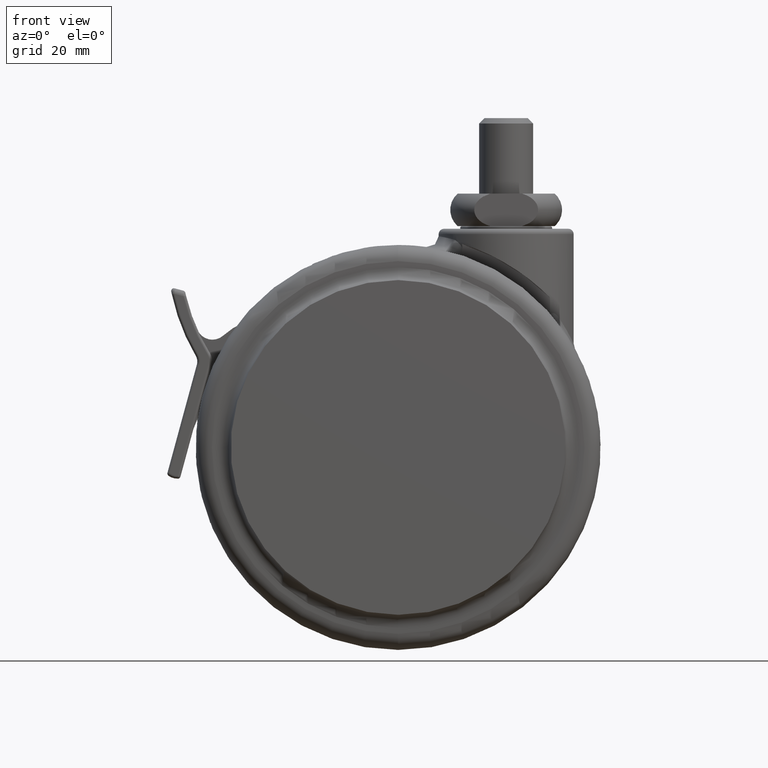
[diagram: clean part render]
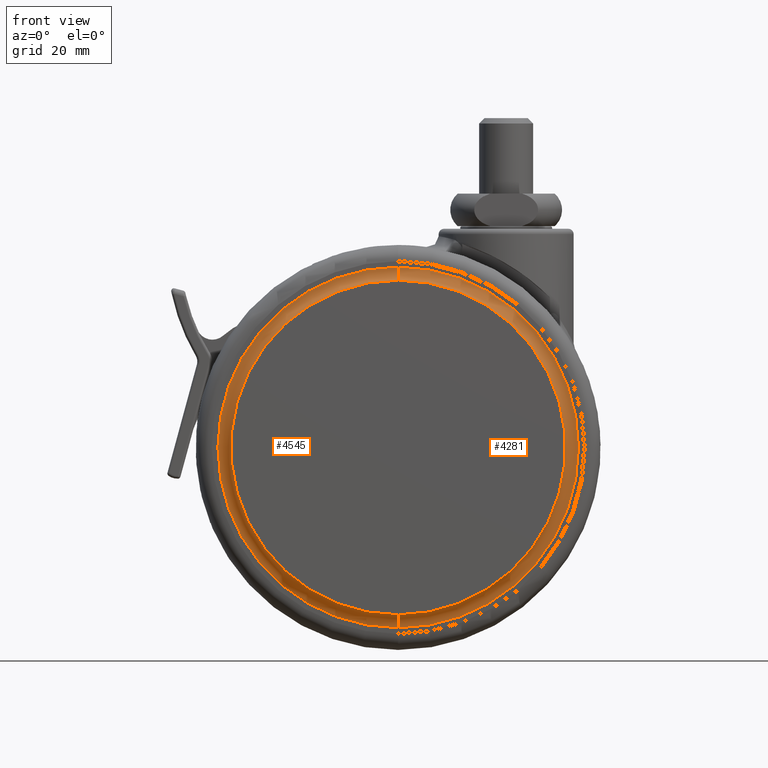
[diagram: same view with one multi-face feature highlighted, each face labeled with its STEP entity id]
A machine part, front view. The highlighted faces form ONE feature: a constant-radius fillet chain: 2 tangent blend faces with common blend radius 2.2 mm. The faces share edges in the B-rep.
Their STEP definitions:
[1] entity #4545 (Torus):
#557 = DIRECTION ( 'NONE',  ( 0.0000000000000000000, 0.0000000000000000000, -1.000000000000000000 ) ) ;
#697 = DIRECTION ( 'NONE',  ( 0.0000000000000000000, -1.000000000000000000, 0.0000000000000000000 ) ) ;
#727 = CARTESIAN_POINT ( 'NONE',  ( -20.00000000000000000, -23.69163752878120000, -73.69163752878149900 ) ) ;
#739 = ORIENTED_EDGE ( 'NONE', *, *, #6822, .T. ) ;
#787 = CIRCLE ( 'NONE', #2594, 2.200000000000000600 ) ;
#1060 = TOROIDAL_SURFACE ( 'NONE', #1325, 33.19163752878149900, 2.200000000000000200 ) ;
#1325 = AXIS2_PLACEMENT_3D ( 'NONE', #6779, #697, #2732 ) ;
#1398 = DIRECTION ( 'NONE',  ( 0.0000000000000000000, 0.0000000000000000000, 1.000000000000000000 ) ) ;
#1590 = CIRCLE ( 'NONE', #7782, 2.199999999999993500 ) ;
#1707 = CIRCLE ( 'NONE', #5595, 31.00000000000000700 ) ;
#1740 = EDGE_CURVE ( 'NONE', #1921, #7778, #787, .T. ) ;
#1810 = VERTEX_POINT ( 'NONE', #7815 ) ;
#1850 = CARTESIAN_POINT ( 'NONE',  ( -20.00000000000000000, -21.50000000000000000, -73.88327505756382200 ) ) ;
#1921 = VERTEX_POINT ( 'NONE', #2128 ) ;
#2024 = CIRCLE ( 'NONE', #4993, 33.38327505756375800 ) ;
#2128 = CARTESIAN_POINT ( 'NONE',  ( -19.99999999999999600, -23.50000000000000000, -9.500000000000001800 ) ) ;
#2366 = CARTESIAN_POINT ( 'NONE',  ( -19.99999999999999600, -23.69163752878120000, -7.308362471218500500 ) ) ;
#2594 = AXIS2_PLACEMENT_3D ( 'NONE', #2366, #7100, #3049 ) ;
#2690 = ORIENTED_EDGE ( 'NONE', *, *, #1740, .T. ) ;
#2732 = DIRECTION ( 'NONE',  ( 0.0000000000000000000, 0.0000000000000000000, -1.000000000000000000 ) ) ;
#3049 = DIRECTION ( 'NONE',  ( 0.0000000000000000000, 0.0000000000000000000, -1.000000000000000000 ) ) ;
#3687 = CARTESIAN_POINT ( 'NONE',  ( -20.00000000000000000, -23.50000000000000000, -40.50000000000000000 ) ) ;
#4388 = DIRECTION ( 'NONE',  ( 0.0000000000000000000, 0.0000000000000000000, -1.000000000000000000 ) ) ;
#4545 = ADVANCED_FACE ( 'NONE', ( #6445 ), #1060, .F. ) ;
#4623 = DIRECTION ( 'NONE',  ( 0.0000000000000000000, -1.000000000000000000, 0.0000000000000000000 ) ) ;
#4861 = VERTEX_POINT ( 'NONE', #1850 ) ;
#4993 = AXIS2_PLACEMENT_3D ( 'NONE', #8629, #4623, #557 ) ;
#5432 = EDGE_LOOP ( 'NONE', ( #8511, #2690, #739, #6112 ) ) ;
#5447 = DIRECTION ( 'NONE',  ( -1.000000000000000000, -0.0000000000000000000, -0.0000000000000000000 ) ) ;
#5595 = AXIS2_PLACEMENT_3D ( 'NONE', #3687, #8385, #4388 ) ;
#6082 = CARTESIAN_POINT ( 'NONE',  ( -19.99999999999999600, -21.50000000000000000, -7.116724942436178500 ) ) ;
#6112 = ORIENTED_EDGE ( 'NONE', *, *, #7374, .F. ) ;
#6445 = FACE_OUTER_BOUND ( 'NONE', #5432, .T. ) ;
#6604 = EDGE_CURVE ( 'NONE', #1921, #1810, #1707, .T. ) ;
#6779 = CARTESIAN_POINT ( 'NONE',  ( -20.00000000000000000, -23.69163752878120000, -40.50000000000000000 ) ) ;
#6822 = EDGE_CURVE ( 'NONE', #7778, #4861, #2024, .T. ) ;
#7100 = DIRECTION ( 'NONE',  ( 1.000000000000000000, 0.0000000000000000000, -1.224646799147353200E-016 ) ) ;
#7374 = EDGE_CURVE ( 'NONE', #1810, #4861, #1590, .T. ) ;
#7778 = VERTEX_POINT ( 'NONE', #6082 ) ;
#7782 = AXIS2_PLACEMENT_3D ( 'NONE', #727, #5447, #1398 ) ;
#7815 = CARTESIAN_POINT ( 'NONE',  ( -20.00000000000000000, -23.50000000000000000, -71.50000000000001400 ) ) ;
#8385 = DIRECTION ( 'NONE',  ( 0.0000000000000000000, -1.000000000000000000, 0.0000000000000000000 ) ) ;
#8511 = ORIENTED_EDGE ( 'NONE', *, *, #6604, .F. ) ;
#8629 = CARTESIAN_POINT ( 'NONE',  ( -20.00000000000000000, -21.50000000000000000, -40.50000000000000000 ) ) ;
[2] entity #4281 (Torus):
#81 = AXIS2_PLACEMENT_3D ( 'NONE', #1251, #5975, #1939 ) ;
#696 = CARTESIAN_POINT ( 'NONE',  ( -20.00000000000000000, -23.69163752878120000, -40.50000000000000000 ) ) ;
#727 = CARTESIAN_POINT ( 'NONE',  ( -20.00000000000000000, -23.69163752878120000, -73.69163752878149900 ) ) ;
#787 = CIRCLE ( 'NONE', #2594, 2.200000000000000600 ) ;
#1201 = EDGE_CURVE ( 'NONE', #4861, #7778, #5027, .T. ) ;
#1251 = CARTESIAN_POINT ( 'NONE',  ( -20.00000000000000000, -23.50000000000000000, -40.50000000000000000 ) ) ;
#1398 = DIRECTION ( 'NONE',  ( 0.0000000000000000000, 0.0000000000000000000, 1.000000000000000000 ) ) ;
#1400 = DIRECTION ( 'NONE',  ( 0.0000000000000000000, 0.0000000000000000000, -1.000000000000000000 ) ) ;
#1590 = CIRCLE ( 'NONE', #7782, 2.199999999999993500 ) ;
#1740 = EDGE_CURVE ( 'NONE', #1921, #7778, #787, .T. ) ;
#1810 = VERTEX_POINT ( 'NONE', #7815 ) ;
#1850 = CARTESIAN_POINT ( 'NONE',  ( -20.00000000000000000, -21.50000000000000000, -73.88327505756382200 ) ) ;
#1921 = VERTEX_POINT ( 'NONE', #2128 ) ;
#1939 = DIRECTION ( 'NONE',  ( 0.0000000000000000000, 0.0000000000000000000, -1.000000000000000000 ) ) ;
#2128 = CARTESIAN_POINT ( 'NONE',  ( -19.99999999999999600, -23.50000000000000000, -9.500000000000001800 ) ) ;
#2337 = TOROIDAL_SURFACE ( 'NONE', #7976, 33.19163752878149900, 2.200000000000000200 ) ;
#2366 = CARTESIAN_POINT ( 'NONE',  ( -19.99999999999999600, -23.69163752878120000, -7.308362471218500500 ) ) ;
#2549 = FACE_OUTER_BOUND ( 'NONE', #3085, .T. ) ;
#2594 = AXIS2_PLACEMENT_3D ( 'NONE', #2366, #7100, #3049 ) ;
#2701 = ORIENTED_EDGE ( 'NONE', *, *, #1201, .T. ) ;
#3049 = DIRECTION ( 'NONE',  ( 0.0000000000000000000, 0.0000000000000000000, -1.000000000000000000 ) ) ;
#3085 = EDGE_LOOP ( 'NONE', ( #8076, #3134, #4362, #2701 ) ) ;
#3134 = ORIENTED_EDGE ( 'NONE', *, *, #4923, .F. ) ;
#4281 = ADVANCED_FACE ( 'NONE', ( #2549 ), #2337, .F. ) ;
#4362 = ORIENTED_EDGE ( 'NONE', *, *, #7374, .T. ) ;
#4861 = VERTEX_POINT ( 'NONE', #1850 ) ;
#4923 = EDGE_CURVE ( 'NONE', #1810, #1921, #7704, .T. ) ;
#5027 = CIRCLE ( 'NONE', #6719, 33.38327505756375800 ) ;
#5447 = DIRECTION ( 'NONE',  ( -1.000000000000000000, -0.0000000000000000000, -0.0000000000000000000 ) ) ;
#5975 = DIRECTION ( 'NONE',  ( 0.0000000000000000000, -1.000000000000000000, 0.0000000000000000000 ) ) ;
#6082 = CARTESIAN_POINT ( 'NONE',  ( -19.99999999999999600, -21.50000000000000000, -7.116724942436178500 ) ) ;
#6719 = AXIS2_PLACEMENT_3D ( 'NONE', #7906, #8047, #7962 ) ;
#7100 = DIRECTION ( 'NONE',  ( 1.000000000000000000, 0.0000000000000000000, -1.224646799147353200E-016 ) ) ;
#7374 = EDGE_CURVE ( 'NONE', #1810, #4861, #1590, .T. ) ;
#7704 = CIRCLE ( 'NONE', #81, 31.00000000000000700 ) ;
#7778 = VERTEX_POINT ( 'NONE', #6082 ) ;
#7782 = AXIS2_PLACEMENT_3D ( 'NONE', #727, #5447, #1398 ) ;
#7815 = CARTESIAN_POINT ( 'NONE',  ( -20.00000000000000000, -23.50000000000000000, -71.50000000000001400 ) ) ;
#7906 = CARTESIAN_POINT ( 'NONE',  ( -20.00000000000000000, -21.50000000000000000, -40.50000000000000000 ) ) ;
#7962 = DIRECTION ( 'NONE',  ( 0.0000000000000000000, 0.0000000000000000000, -1.000000000000000000 ) ) ;
#7976 = AXIS2_PLACEMENT_3D ( 'NONE', #696, #8083, #1400 ) ;
#8047 = DIRECTION ( 'NONE',  ( 0.0000000000000000000, -1.000000000000000000, 0.0000000000000000000 ) ) ;
#8076 = ORIENTED_EDGE ( 'NONE', *, *, #1740, .F. ) ;
#8083 = DIRECTION ( 'NONE',  ( 0.0000000000000000000, -1.000000000000000000, 0.0000000000000000000 ) ) ;